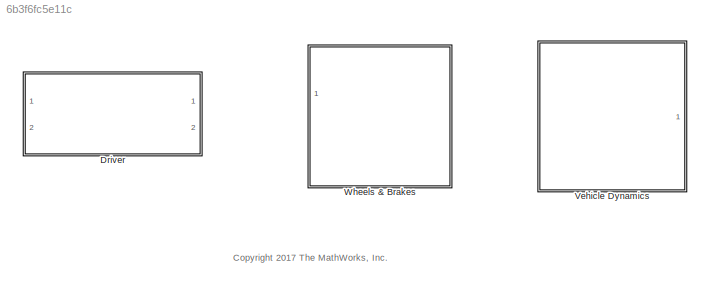
MODEL slx_6b3f6fc5e11c
KIND library
CONFIG AbsTol = auto
CONFIG EnableMultiTasking = off
CONFIG FixedStep = auto
CONFIG MaxStep = auto
CONFIG MinStep = auto
CONFIG RelTol = 1e-3
CONFIG SampleTimeConstraint = Unconstrained
CONFIG Solver = VariableStepAuto
CONFIG SolverName = VariableStepAuto
CONFIG StartTime = 0.0
CONFIG StopTime = 10.0
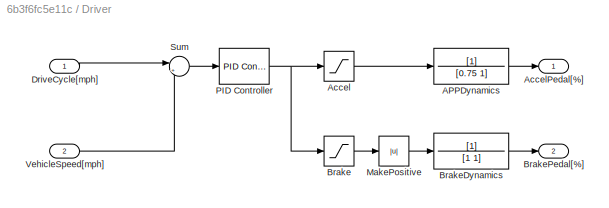
BLOCK [SubSystem] Driver
  Ports = [2, 2]
  RequestExecContextInheritance = off
BLOCK [Inport] Driver/ DriveCycle[mph]
  IconDisplay = Port number
BLOCK [TransferFcn] Driver/APPDynamics
  Denominator = [0.75 1]
BLOCK [Saturate] Driver/Accel
  InputPortMap = u0
  LowerLimit = 0
  Ports = [1, 1]
  UpperLimit = 100
BLOCK [Outport] Driver/AccelPedal[%]
  IconDisplay = Port number
BLOCK [Saturate] Driver/Brake
  InputPortMap = u0
  LowerLimit = -100
  Ports = [1, 1]
  UpperLimit = 0
BLOCK [TransferFcn] Driver/BrakeDynamics
  Denominator = [1 1]
BLOCK [Outport] Driver/BrakePedal[%]
  IconDisplay = Port number
  Port = 2
BLOCK [Abs] Driver/MakePositive
  SaturateOnIntegerOverflow = off
BLOCK [Reference] Driver/PID Controller  REF=simulink/Continuous/PID Controller
  Ports = [1, 1]
  SourceBlock = simulink/Continuous/PID Controller
  SourceProductBaseCode = SL
  SourceProductName = Simulink
  SourceType = PID 1dof
BLOCK [Sum] Driver/Sum
  IconShape = round
  InputSameDT = off
  Inputs = |+-
  OutDataTypeStr = Inherit: Inherit via internal rule
  Ports = [2, 1]
  SaturateOnIntegerOverflow = off
BLOCK [Inport] Driver/VehicleSpeed[mph]
  IconDisplay = Port number
  Port = 2
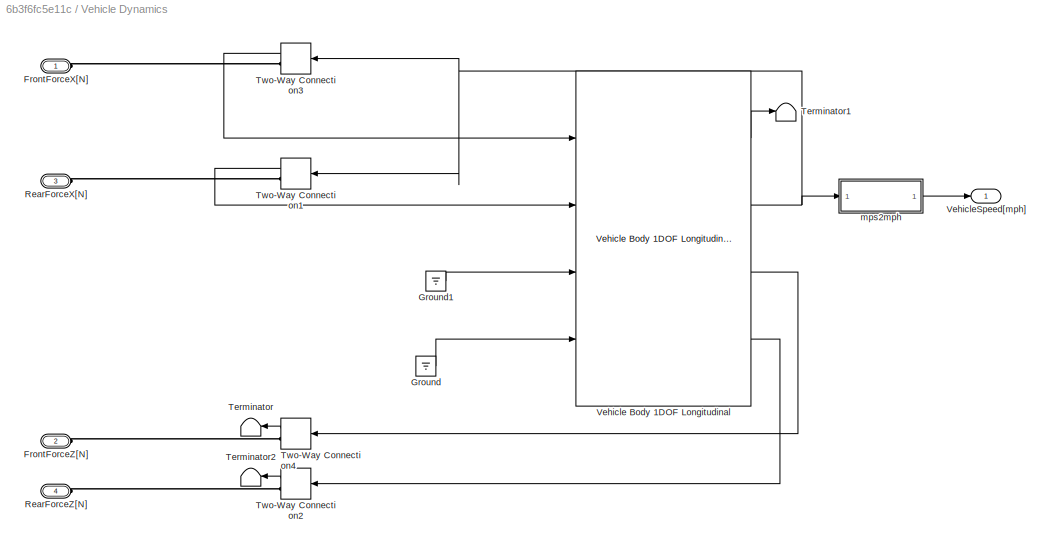
BLOCK [SubSystem] Vehicle Dynamics
  Ports = [0, 1, 0, 0, 0, 4]
  RequestExecContextInheritance = off
BLOCK [PMIOPort] Vehicle Dynamics/FrontForceX[N]
  Side = Left
BLOCK [PMIOPort] Vehicle Dynamics/FrontForceZ[N]
  Port = 2
  Side = Left
BLOCK [Ground] Vehicle Dynamics/Ground
BLOCK [Ground] Vehicle Dynamics/Ground1
BLOCK [PMIOPort] Vehicle Dynamics/RearForceX[N]
  Port = 3
  Side = Left
BLOCK [PMIOPort] Vehicle Dynamics/RearForceZ[N]
  Port = 4
  Side = Left
BLOCK [Terminator] Vehicle Dynamics/Terminator
BLOCK [Terminator] Vehicle Dynamics/Terminator1
BLOCK [Terminator] Vehicle Dynamics/Terminator2
BLOCK [TwoWayConnection] Vehicle Dynamics/Two-Way Connection1
  Ports = [1, 1, 0, 0, 0, 0, 1]
BLOCK [TwoWayConnection] Vehicle Dynamics/Two-Way Connection2
  Ports = [1, 1, 0, 0, 0, 0, 1]
BLOCK [TwoWayConnection] Vehicle Dynamics/Two-Way Connection3
  Ports = [1, 1, 0, 0, 0, 0, 1]
BLOCK [TwoWayConnection] Vehicle Dynamics/Two-Way Connection4
  Ports = [1, 1, 0, 0, 0, 0, 1]
BLOCK [Reference] Vehicle Dynamics/Vehicle Body 1DOF Longitudinal  REF=autolibshared/Vehicle Body 1DOF Longitudinal
  Ports = [4, 4]
  SourceBlock = autolibshared/Vehicle Body 1DOF Longitudinal
  SourceProductBaseCode = PW
  SourceProductName = Powertrain Blockset
  SourceType = Vehicle Body 1DOF Longitudinal
BLOCK [Outport] Vehicle Dynamics/VehicleSpeed[mph]
  IconDisplay = Port number
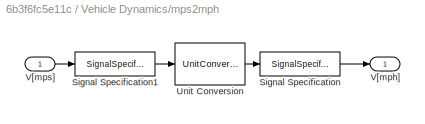
BLOCK [SubSystem] Vehicle Dynamics/mps2mph
  Ports = [1, 1]
  RequestExecContextInheritance = off
BLOCK [SignalSpecification] Vehicle Dynamics/mps2mph/Signal Specification
  Unit = mph
BLOCK [SignalSpecification] Vehicle Dynamics/mps2mph/Signal Specification1
  Unit = m/s
BLOCK [UnitConversion] Vehicle Dynamics/mps2mph/Unit Conversion
BLOCK [Outport] Vehicle Dynamics/mps2mph/V[mph]
  IconDisplay = Port number
BLOCK [Inport] Vehicle Dynamics/mps2mph/V[mps]
  IconDisplay = Port number
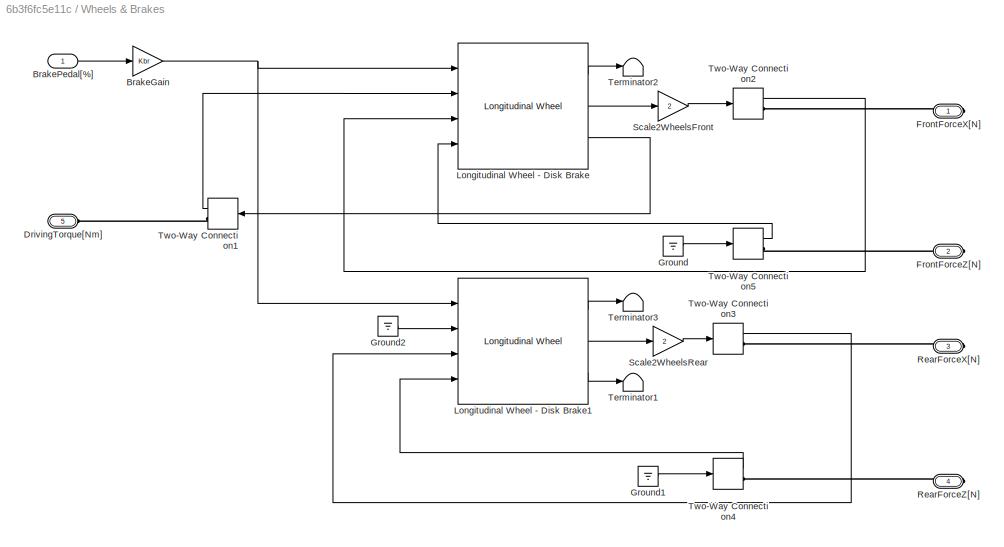
BLOCK [SubSystem] Wheels & Brakes
  Ports = [1, 0, 0, 0, 0, 1, 4]
  RequestExecContextInheritance = off
BLOCK [Gain] Wheels & Brakes/BrakeGain
  Gain = Kbr
  OutDataTypeStr = Inherit: Inherit via internal rule
  ParamDataTypeStr = Inherit: Inherit via internal rule
  SaturateOnIntegerOverflow = off
BLOCK [Inport] Wheels & Brakes/BrakePedal[%]
  IconDisplay = Port number
BLOCK [PMIOPort] Wheels & Brakes/DrivingTorque[Nm]
  Port = 5
  Side = Left
BLOCK [PMIOPort] Wheels & Brakes/FrontForceX[N]
  Side = Right
BLOCK [PMIOPort] Wheels & Brakes/FrontForceZ[N]
  Port = 2
  Side = Right
BLOCK [Ground] Wheels & Brakes/Ground
BLOCK [Ground] Wheels & Brakes/Ground1
BLOCK [Ground] Wheels & Brakes/Ground2
BLOCK [Reference] Wheels & Brakes/Longitudinal Wheel - Disk Brake  REF=autolibshared/Longitudinal Wheel
  AttributesFormatString = Fx Type: %<FxType>\nRolling Type: %<rollingType>
  Ports = [4, 3]
  SourceBlock = autolibshared/Longitudinal Wheel
  SourceProductBaseCode = PW
  SourceProductName = Powertrain Blockset
  SourceType = Longitudinal Wheel
BLOCK [Reference] Wheels & Brakes/Longitudinal Wheel - Disk Brake1  REF=autolibshared/Longitudinal Wheel
  AttributesFormatString = Fx Type: %<FxType>\nRolling Type: %<rollingType>
  Ports = [4, 3]
  SourceBlock = autolibshared/Longitudinal Wheel
  SourceProductBaseCode = PW
  SourceProductName = Powertrain Blockset
  SourceType = Longitudinal Wheel
BLOCK [PMIOPort] Wheels & Brakes/RearForceX[N]
  Port = 3
  Side = Right
BLOCK [PMIOPort] Wheels & Brakes/RearForceZ[N]
  Port = 4
  Side = Right
BLOCK [Gain] Wheels & Brakes/Scale2WheelsFront
  Gain = 2
  OutDataTypeStr = Inherit: Inherit via internal rule
  ParamDataTypeStr = Inherit: Inherit via internal rule
  SaturateOnIntegerOverflow = off
BLOCK [Gain] Wheels & Brakes/Scale2WheelsRear
  Gain = 2
  OutDataTypeStr = Inherit: Inherit via internal rule
  ParamDataTypeStr = Inherit: Inherit via internal rule
  SaturateOnIntegerOverflow = off
BLOCK [Terminator] Wheels & Brakes/Terminator1
BLOCK [Terminator] Wheels & Brakes/Terminator2
BLOCK [Terminator] Wheels & Brakes/Terminator3
BLOCK [TwoWayConnection] Wheels & Brakes/Two-Way Connection1
  Ports = [1, 1, 0, 0, 0, 0, 1]
BLOCK [TwoWayConnection] Wheels & Brakes/Two-Way Connection2
  Ports = [1, 1, 0, 0, 0, 0, 1]
BLOCK [TwoWayConnection] Wheels & Brakes/Two-Way Connection3
  Ports = [1, 1, 0, 0, 0, 0, 1]
BLOCK [TwoWayConnection] Wheels & Brakes/Two-Way Connection4
  Ports = [1, 1, 0, 0, 0, 0, 1]
BLOCK [TwoWayConnection] Wheels & Brakes/Two-Way Connection5
  Ports = [1, 1, 0, 0, 0, 0, 1]
ANNOTATION (root): <copyright redacted>
LINE Driver/ DriveCycle[mph]:1 -> Driver/Sum:1
LINE Driver/APPDynamics:1 -> Driver/AccelPedal[%]:1
LINE Driver/Accel:1 -> Driver/APPDynamics:1
LINE Driver/Brake:1 -> Driver/MakePositive:1
LINE Driver/BrakeDynamics:1 -> Driver/BrakePedal[%]:1
LINE Driver/MakePositive:1 -> Driver/BrakeDynamics:1
NET Driver/PID Controller:1 -> Driver/Accel:1, Driver/Brake:1
LINE Driver/Sum:1 -> Driver/PID Controller:1
LINE Driver/VehicleSpeed[mph]:1 -> Driver/Sum:2
LINE Vehicle Dynamics/Ground1:1 -> Vehicle Dynamics/Vehicle Body 1DOF Longitudinal:3
LINE Vehicle Dynamics/Ground:1 -> Vehicle Dynamics/Vehicle Body 1DOF Longitudinal:4
LINE Vehicle Dynamics/Two-Way Connection1:1 -> Vehicle Dynamics/Vehicle Body 1DOF Longitudinal:2
LINE Vehicle Dynamics/Two-Way Connection2:1 -> Vehicle Dynamics/Terminator2:1
LINE Vehicle Dynamics/Two-Way Connection3:1 -> Vehicle Dynamics/Vehicle Body 1DOF Longitudinal:1
LINE Vehicle Dynamics/Two-Way Connection4:1 -> Vehicle Dynamics/Terminator:1
LINE Vehicle Dynamics/Vehicle Body 1DOF Longitudinal:1 -> Vehicle Dynamics/Terminator1:1
NET Vehicle Dynamics/Vehicle Body 1DOF Longitudinal:2 -> Vehicle Dynamics/Two-Way Connection1:1, Vehicle Dynamics/Two-Way Connection3:1, Vehicle Dynamics/mps2mph:1
LINE Vehicle Dynamics/Vehicle Body 1DOF Longitudinal:3 -> Vehicle Dynamics/Two-Way Connection4:1
LINE Vehicle Dynamics/Vehicle Body 1DOF Longitudinal:4 -> Vehicle Dynamics/Two-Way Connection2:1
LINE Vehicle Dynamics/mps2mph/Signal Specification1:1 -> Vehicle Dynamics/mps2mph/Unit Conversion:1
LINE Vehicle Dynamics/mps2mph/Signal Specification:1 -> Vehicle Dynamics/mps2mph/V[mph]:1
LINE Vehicle Dynamics/mps2mph/Unit Conversion:1 -> Vehicle Dynamics/mps2mph/Signal Specification:1
LINE Vehicle Dynamics/mps2mph/V[mps]:1 -> Vehicle Dynamics/mps2mph/Signal Specification1:1
LINE Vehicle Dynamics/mps2mph:1 -> Vehicle Dynamics/VehicleSpeed[mph]:1
NET Wheels & Brakes/BrakeGain:1 -> Wheels & Brakes/Longitudinal Wheel - Disk Brake1:1, Wheels & Brakes/Longitudinal Wheel - Disk Brake:1
LINE Wheels & Brakes/BrakePedal[%]:1 -> Wheels & Brakes/BrakeGain:1
LINE Wheels & Brakes/Ground1:1 -> Wheels & Brakes/Two-Way Connection4:1
LINE Wheels & Brakes/Ground2:1 -> Wheels & Brakes/Longitudinal Wheel - Disk Brake1:2
LINE Wheels & Brakes/Ground:1 -> Wheels & Brakes/Two-Way Connection5:1
LINE Wheels & Brakes/Longitudinal Wheel - Disk Brake1:1 -> Wheels & Brakes/Terminator3:1
LINE Wheels & Brakes/Longitudinal Wheel - Disk Brake1:2 -> Wheels & Brakes/Scale2WheelsRear:1
LINE Wheels & Brakes/Longitudinal Wheel - Disk Brake1:3 -> Wheels & Brakes/Terminator1:1
LINE Wheels & Brakes/Longitudinal Wheel - Disk Brake:1 -> Wheels & Brakes/Terminator2:1
LINE Wheels & Brakes/Longitudinal Wheel - Disk Brake:2 -> Wheels & Brakes/Scale2WheelsFront:1
LINE Wheels & Brakes/Longitudinal Wheel - Disk Brake:3 -> Wheels & Brakes/Two-Way Connection1:1
LINE Wheels & Brakes/Scale2WheelsFront:1 -> Wheels & Brakes/Two-Way Connection2:1
LINE Wheels & Brakes/Scale2WheelsRear:1 -> Wheels & Brakes/Two-Way Connection3:1
LINE Wheels & Brakes/Two-Way Connection1:1 -> Wheels & Brakes/Longitudinal Wheel - Disk Brake:2
LINE Wheels & Brakes/Two-Way Connection2:1 -> Wheels & Brakes/Longitudinal Wheel - Disk Brake:3
LINE Wheels & Brakes/Two-Way Connection3:1 -> Wheels & Brakes/Longitudinal Wheel - Disk Brake1:3
LINE Wheels & Brakes/Two-Way Connection4:1 -> Wheels & Brakes/Longitudinal Wheel - Disk Brake1:4
LINE Wheels & Brakes/Two-Way Connection5:1 -> Wheels & Brakes/Longitudinal Wheel - Disk Brake:4
PLINE Vehicle Dynamics/FrontForceX[N]:RConn1 -- Vehicle Dynamics/Two-Way Connection3:RConn1
PLINE Vehicle Dynamics/FrontForceZ[N]:RConn1 -- Vehicle Dynamics/Two-Way Connection4:RConn1
PLINE Vehicle Dynamics/RearForceX[N]:RConn1 -- Vehicle Dynamics/Two-Way Connection1:RConn1
PLINE Vehicle Dynamics/RearForceZ[N]:RConn1 -- Vehicle Dynamics/Two-Way Connection2:RConn1
PLINE Wheels & Brakes/DrivingTorque[Nm]:RConn1 -- Wheels & Brakes/Two-Way Connection1:RConn1
PLINE Wheels & Brakes/FrontForceX[N]:RConn1 -- Wheels & Brakes/Two-Way Connection2:RConn1
PLINE Wheels & Brakes/FrontForceZ[N]:RConn1 -- Wheels & Brakes/Two-Way Connection5:RConn1
PLINE Wheels & Brakes/RearForceX[N]:RConn1 -- Wheels & Brakes/Two-Way Connection3:RConn1
PLINE Wheels & Brakes/RearForceZ[N]:RConn1 -- Wheels & Brakes/Two-Way Connection4:RConn1
note: NET lines group one-source signal fan-out (src -> all destinations, sorted); 1:1 wires keep LINE
